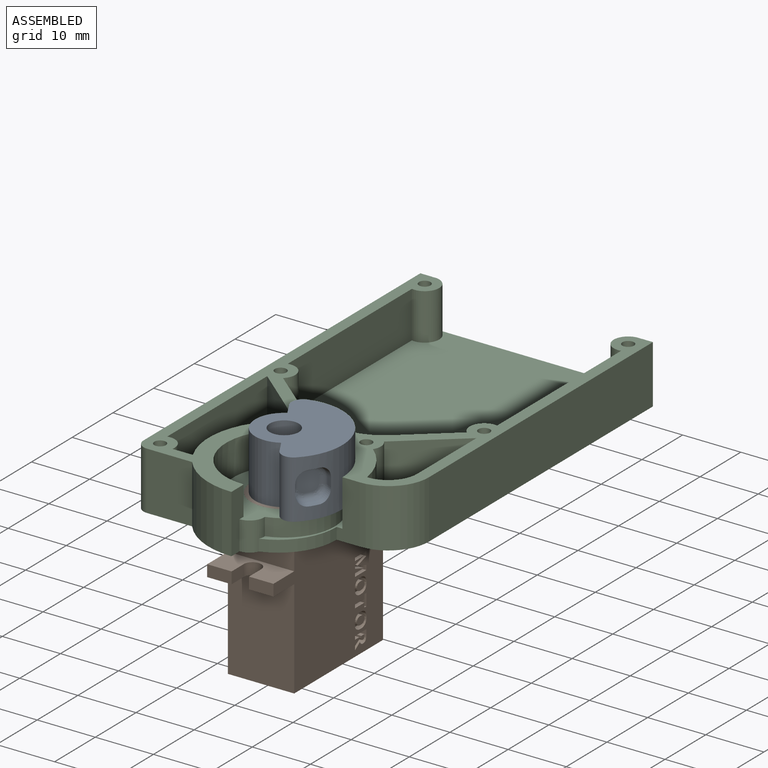
[diagram: assembled view]
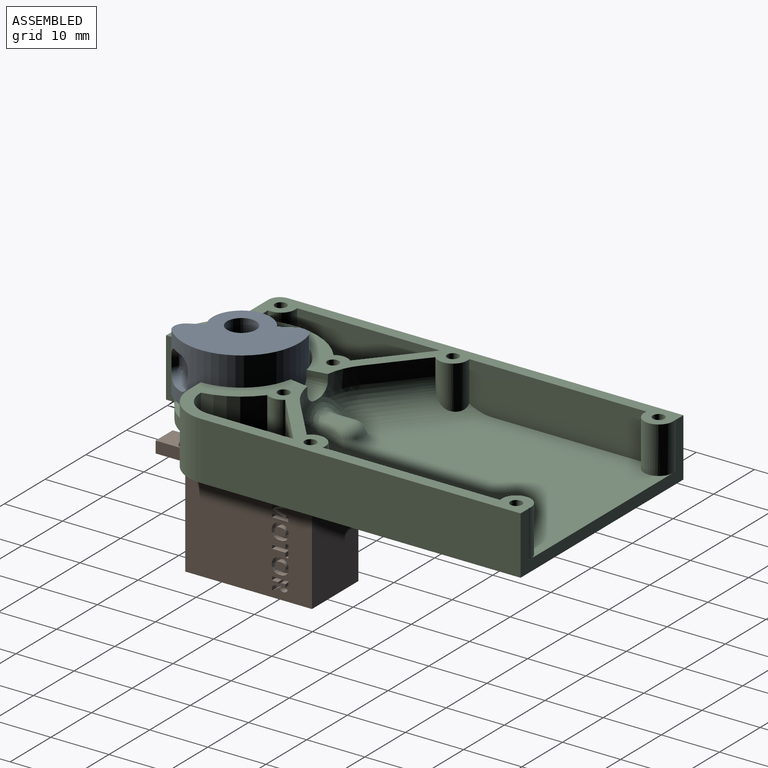
[diagram: assembled view, second angle]
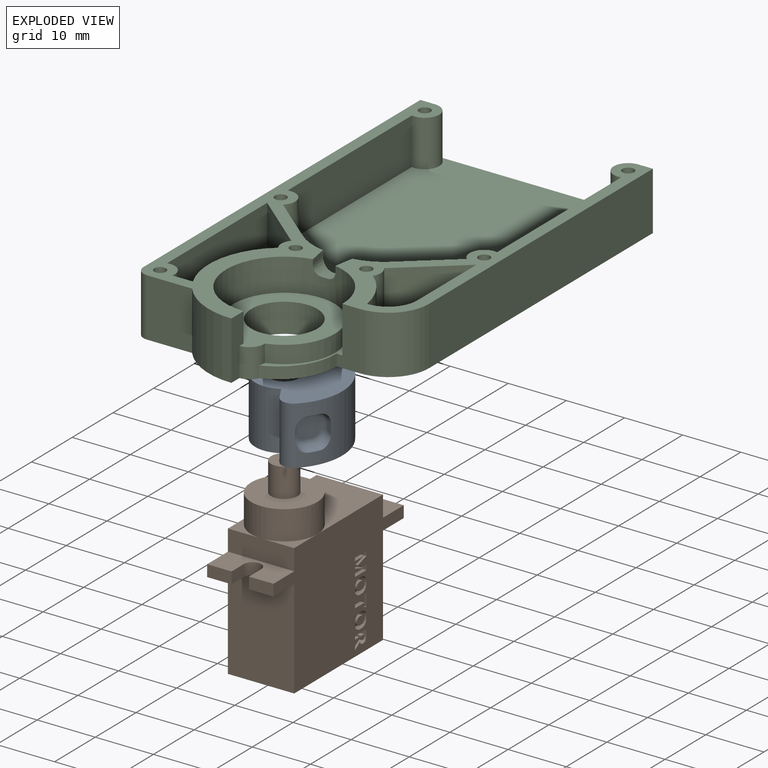
[diagram: exploded view]
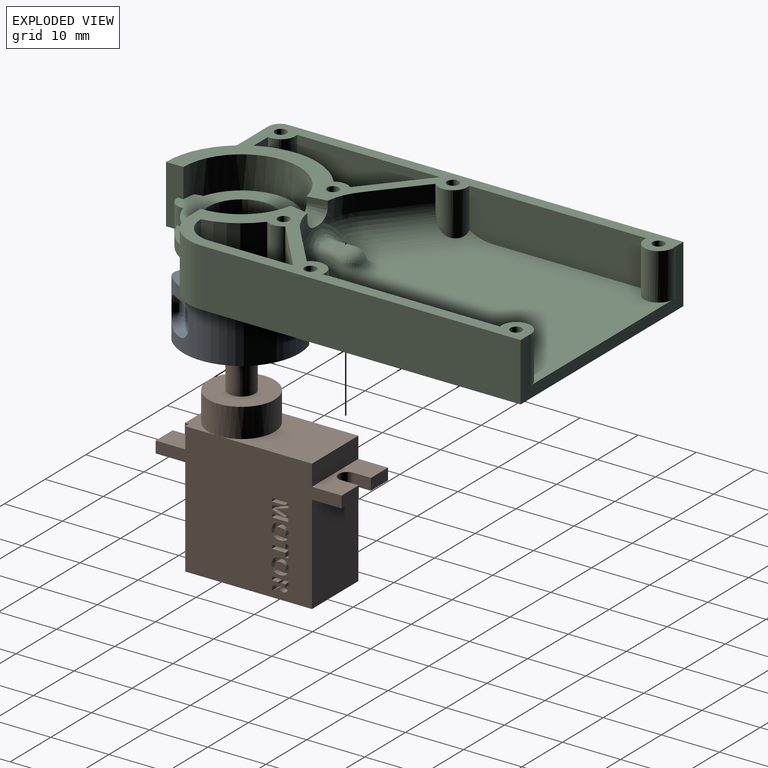
[diagram: exploded view, second angle]
ASSEMBLY  parts=3 mates=3
PART A: 30 faces, bbox 15x10x17.7 mm
  f0: cylinder r=1mm len=2mm, axis (0,-1,0), area 12.6mm2, adj f25,f29
  f1: plane 10x2.38mm, normal (0.87,0,-0.5), area 27.5mm2, adj f3,f4,f23,f27
  f2: cylinder r=10mm len=17.14mm, axis (0,1,0), area 235.3mm2, adj f3,f4,f5,f6,f7,f10,f11,f12
  f3: plane 17.71x15mm, normal (0,1,0), area 174.2mm2, adj f1,f2,f22,f23,f26,f27,f28
  f4: plane 17.71x15mm, normal (0,-1,0), area 174.2mm2, adj f1,f2,f22,f23,f24,f26,f27
  f5: plane 1.77x1.19mm, normal (0,-0.98,0.17), area 1.8mm2, adj f2,f10,f13,f17
  f6: plane 1.77x1.19mm, normal (0,0.98,0.17), area 1.8mm2, adj f2,f11,f12,f18
  f7: plane 1.63x0.78mm, normal (0.98,0,0.17), area 1.2mm2, adj f2,f10,f11,f14
  f8: plane 1.63x0.78mm, normal (-0.98,0,0.17), area 1.2mm2, adj f12,f13,f21,f27
  f9: plane 3.32x3.32mm, normal (0,0,1), area 10.2mm2, adj f14,f15,f16,f17,f18,f19,f20,f21
  f10: cylinder r=2mm len=2.17mm, axis (-0.17,0.17,0.97), area 3.1mm2, adj f2,f5,f7,f15
  f11: cylinder r=2mm len=2.17mm, axis (-0.17,-0.17,0.97), area 3.1mm2, adj f2,f6,f7,f16
  f12: cylinder r=2mm len=2.17mm, axis (0.17,-0.17,0.97), area 3.1mm2, adj f2,f6,f8,f20,f27
  f13: cylinder r=2mm len=2.17mm, axis (0.17,0.17,0.97), area 3.1mm2, adj f2,f5,f8,f19,f27
  f14: cylinder r=1mm len=1.35mm, axis (0,1,0), area 1.9mm2, adj f7,f9,f15,f16
  f15: bspline ~1.97x1.97mm, area 3.3mm2, adj f9,f10,f14,f17
  f16: bspline ~1.97x1.97mm, area 3.3mm2, adj f9,f11,f14,f18
  f17: cylinder r=1mm len=1.35mm, axis (-1,0,0), area 1.9mm2, adj f5,f9,f15,f19
  f18: cylinder r=1mm len=1.35mm, axis (-1,0,0), area 1.9mm2, adj f6,f9,f16,f20
  f19: bspline ~1.97x1.97mm, area 3.3mm2, adj f9,f13,f17,f21
  f20: bspline ~1.97x1.97mm, area 3.3mm2, adj f9,f12,f18,f21
  f21: cylinder r=1mm len=1.35mm, axis (0,1,0), area 1.9mm2, adj f8,f9,f19,f20
  f22: plane 10x2.38mm, normal (0.87,0,-0.5), area 27.5mm2, adj f3,f4,f23,f26
  f23: cylinder r=5mm len=10mm, axis (0,1,0), area 157.1mm2, adj f1,f3,f4,f22
  f24: cylinder r=2.5mm len=5mm, axis (0,-1,0), area 47.1mm2, adj f4,f25
  f25: plane 5x5mm, normal (0,-1,0), area 16.5mm2, adj f0,f24
  f26: cylinder r=2mm len=10mm, axis (0,1,0), area 36.5mm2, adj f2,f3,f4,f22
  f27: cylinder r=2mm len=10mm, axis (0,1,0), area 36.2mm2, adj f1,f2,f3,f4,f8,f12,f13
  f28: cylinder r=2.5mm len=5mm, axis (0,1,0), area 78.5mm2, adj f3,f29
  f29: plane 5x5mm, normal (0,1,0), area 16.5mm2, adj f0,f28
PART B: 112 faces, bbox 32x11.4x32.6 mm
  f0: plane 32x22.6mm, normal (0,1,0), area 488.4mm2, adj f3,f4,f5,f6,f7,f8,f9,f11
  f1: plane 4.2x2mm, normal (1,0,0), area 8.4mm2, adj f10,f15,f16,f29
  f2: plane 4.2x2mm, normal (-1,0,0), area 8.4mm2, adj f3,f4,f10,f25
  f3: plane 11.4x5.1mm, normal (0,0,1), area 45.6mm2, adj f0,f2,f7,f10,f17,f24,f25,f26
  f4: plane 11.4x5.1mm, normal (0,0,-1), area 45.6mm2, adj f0,f2,f9,f10,f17,f24,f25,f26
  f5: plane 5.7x5.7mm, normal (0,0,1), area 7mm2, adj f0,f8,f18
  f6: plane 16.1x11.4mm, normal (0,0,1), area 132.5mm2, adj f0,f7,f10,f18
  f7: plane 11.4x3.6mm, normal (-1,0,0), area 41mm2, adj f0,f3,f6,f10
  f8: plane 11.4x3.6mm, normal (1,0,0), area 41mm2, adj f0,f5,f10,f12,f16
  f9: plane 17x11.4mm, normal (-1,0,0), area 193.8mm2, adj f0,f4,f10,f13
  f10: plane 32x22.6mm, normal (0,-1,0), area 513.1mm2, adj f1,f2,f3,f4,f6,f7,f8,f9
  f11: plane 17x11.4mm, normal (1,0,0), area 193.8mm2, adj f0,f10,f13,f15
  f12: plane 5.7x5.7mm, normal (0,0,1), area 7mm2, adj f8,f10,f18
  f13: plane 21.8x11.4mm, normal (0,0,-1), area 248.5mm2, adj f0,f9,f10,f11
  f14: plane 4.2x2mm, normal (1,0,0), area 8.4mm2, adj f0,f15,f16,f28
  f15: plane 11.4x5.1mm, normal (0,0,-1), area 45.6mm2, adj f0,f1,f10,f11,f14,f27,f28,f29
  f16: plane 11.4x5.1mm, normal (0,0,1), area 45.6mm2, adj f0,f1,f8,f10,f14,f27,f28,f29
  f17: plane 4.2x2mm, normal (-1,0,0), area 8.4mm2, adj f0,f3,f4,f26
  f18: cylinder r=5.7mm len=11.4mm, axis (0,0,-1), area 179.1mm2, adj f5,f6,f12,f19
  f19: plane 11.4x11.4mm, normal (0,0,1), area 85.8mm2, adj f18,f20
  f20: cylinder r=2.27mm len=5mm, axis (0,0,-1), area 71.5mm2, adj f19,f21
  f21: plane 4.55x4.55mm, normal (0,0,1), area 14.6mm2, adj f20,f22
  f22: cylinder r=0.74mm len=5mm, axis (0,0,1), area 23.2mm2, adj f21,f23
  f23: plane 1.48x1.48mm, normal (0,0,1), area 1.7mm2, adj f22
  f24: cylinder r=1.5mm len=3mm, axis (0,0,1), area 9.4mm2, adj f3,f4,f25,f26
  f25: plane 3x2mm, normal (0,1,0), area 6mm2, adj f2,f3,f4,f24
  f26: plane 3x2mm, normal (0,-1,0), area 6mm2, adj f3,f4,f17,f24
  f27: cylinder r=1.5mm len=3mm, axis (0,0,1), area 9.4mm2, adj f15,f16,f28,f29
  f28: plane 3x2mm, normal (0,-1,0), area 6mm2, adj f14,f15,f16,f27
  f29: plane 3x2mm, normal (0,1,0), area 6mm2, adj f1,f15,f16,f27
  f30: plane 1.07x1mm, normal (0,0,1), area 1.1mm2, adj f0,f31,f48,f49
  f31: plane 1x0.31mm, normal (-1,0,0), area 0.3mm2, adj f0,f30,f32,f49
  f32: plane 1.07x1mm, normal (-0.53,0,-0.85), area 1.3mm2, adj f0,f31,f33,f49
  f33: plane 1x0.66mm, normal (-1,0,0), area 0.7mm2, adj f0,f32,f34,f49
  f34: extruded ~1.22x1mm, area 1.5mm2, adj f0,f33,f35,f49
  f35: extruded ~1x0.38mm, area 0.5mm2, adj f0,f34,f36,f49
  f36: extruded ~1x0.44mm, area 0.5mm2, adj f0,f35,f37,f49
  f37: extruded ~1x0.63mm, area 0.7mm2, adj f0,f36,f38,f49
  f38: extruded ~1x0.84mm, area 0.9mm2, adj f0,f37,f39,f49
  f39: plane 1x0.81mm, normal (1,0,0), area 0.8mm2, adj f0,f38,f40,f49
  f40: plane 2.79x1mm, normal (0,0,-1), area 2.8mm2, adj f0,f39,f48,f49
  f41: plane 1x0.19mm, normal (1,0,0), area 0.2mm2, adj f42,f47,f49,f50
  f42: plane 1x0.75mm, normal (0,0,1), area 0.8mm2, adj f41,f43,f49,f50
  f43: plane 1x0.18mm, normal (-1,0,0), area 0.2mm2, adj f42,f44,f49,f50
  f44: extruded ~1x0.42mm, area 0.4mm2, adj f43,f45,f49,f50
  f45: extruded ~1x0.28mm, area 0.3mm2, adj f44,f46,f49,f50
  f46: extruded ~1x0.29mm, area 0.3mm2, adj f45,f47,f49,f50
  f47: extruded ~1x0.41mm, area 0.4mm2, adj f41,f46,f49,f50
  f48: plane 1x0.59mm, normal (-1,0,0), area 0.6mm2, adj f0,f30,f40,f49
  f49: plane 2.79x2.23mm, normal (0,1,0), area 3.8mm2, adj f30,f31,f32,f33,f34,f35,f36,f37
  f50: plane 0.75x0.74mm, normal (0,1,0), area 0.5mm2, adj f41,f42,f43,f44,f45,f46,f47
  f51: extruded ~1x0.7mm, area 0.7mm2, adj f52,f64,f65,f110
  f52: extruded ~1x0.7mm, area 0.7mm2, adj f51,f53,f65,f110
  f53: extruded ~1x0.53mm, area 0.6mm2, adj f52,f54,f65,f110
  f54: extruded ~1x0.94mm, area 1.3mm2, adj f53,f55,f65,f110
  f55: extruded ~1x0.94mm, area 1.3mm2, adj f54,f64,f65,f110
  f56: extruded ~1.07x1mm, area 1.1mm2, adj f0,f57,f63,f65
  f57: extruded ~1.06x1mm, area 1.1mm2, adj f0,f56,f58,f65
  f58: extruded ~1x0.98mm, area 1.1mm2, adj f0,f57,f59,f65
  f59: extruded ~1x0.99mm, area 1.1mm2, adj f0,f58,f60,f65
  f60: extruded ~1.06x1mm, area 1.1mm2, adj f0,f59,f61,f65
  f61: extruded ~1.07x1mm, area 1.1mm2, adj f0,f60,f62,f65
  f62: extruded ~1x0.98mm, area 1.1mm2, adj f0,f61,f63,f65
  f63: extruded ~1x0.98mm, area 1.1mm2, adj f0,f56,f62,f65
  f64: extruded ~1x0.53mm, area 0.6mm2, adj f51,f55,f65,f110
  f65: plane 2.87x2.66mm, normal (0,1,0), area 4.1mm2, adj f51,f52,f53,f54,f55,f56,f57,f58
  f66: extruded ~1x0.7mm, area 0.7mm2, adj f67,f79,f80,f111
  f67: extruded ~1x0.7mm, area 0.7mm2, adj f66,f68,f80,f111
  f68: extruded ~1x0.53mm, area 0.6mm2, adj f67,f69,f80,f111
  f69: extruded ~1x0.94mm, area 1.3mm2, adj f68,f70,f80,f111
  f70: extruded ~1x0.94mm, area 1.3mm2, adj f69,f79,f80,f111
  f71: extruded ~1.07x1mm, area 1.1mm2, adj f0,f72,f78,f80
  f72: extruded ~1.06x1mm, area 1.1mm2, adj f0,f71,f73,f80
  f73: extruded ~1x0.98mm, area 1.1mm2, adj f0,f72,f74,f80
  f74: extruded ~1x0.99mm, area 1.1mm2, adj f0,f73,f75,f80
  f75: extruded ~1.06x1mm, area 1.1mm2, adj f0,f74,f76,f80
  f76: extruded ~1.07x1mm, area 1.1mm2, adj f0,f75,f77,f80
  f77: extruded ~1x0.98mm, area 1.1mm2, adj f0,f76,f78,f80
  f78: extruded ~1x0.98mm, area 1.1mm2, adj f0,f71,f77,f80
  f79: extruded ~1x0.53mm, area 0.6mm2, adj f66,f70,f80,f111
  f80: plane 2.87x2.66mm, normal (0,1,0), area 4.1mm2, adj f66,f67,f68,f69,f70,f71,f72,f73
  f81: plane 1x0.59mm, normal (-1,0,0), area 0.6mm2, adj f0,f82,f88,f89
  f82: plane 2.3x1mm, normal (0,0,1), area 2.3mm2, adj f0,f81,f83,f89
  f83: plane 1x0.76mm, normal (-1,0,0), area 0.8mm2, adj f0,f82,f84,f89
  f84: plane 1x0.49mm, normal (0,0,1), area 0.5mm2, adj f0,f83,f85,f89
  f85: plane 2.11x1mm, normal (1,0,0), area 2.1mm2, adj f0,f84,f86,f89
  f86: plane 1x0.49mm, normal (0,0,-1), area 0.5mm2, adj f0,f85,f87,f89
  f87: plane 1x0.76mm, normal (-1,0,0), area 0.8mm2, adj f0,f86,f88,f89
  f88: plane 2.3x1mm, normal (0,0,-1), area 2.3mm2, adj f0,f81,f87,f89
  f89: plane 2.79x2.11mm, normal (0,1,0), area 2.4mm2, adj f81,f82,f83,f84,f85,f86,f87,f88
  f90: plane 2.19x1mm, normal (-0.29,0,-0.96), area 2.3mm2, adj f0,f91,f108,f109
  f91: plane 1x0.54mm, normal (-1,0,0), area 0.5mm2, adj f0,f90,f92,f109
  f92: plane 2.18x1mm, normal (-0.31,0,0.95), area 2.3mm2, adj f0,f91,f93,f109
  f93: plane 1x0.02mm, normal (-1,0,0), area 0mm2, adj f0,f92,f94,f109
  f94: extruded ~1x0.65mm, area 0.6mm2, adj f0,f93,f95,f109
  f95: extruded ~1x0.22mm, area 0.2mm2, adj f0,f94,f96,f109
  f96: plane 1.32x1mm, normal (0,0,-1), area 1.3mm2, adj f0,f95,f97,f109
  f97: plane 1x0.55mm, normal (-1,0,0), area 0.6mm2, adj f0,f96,f98,f109
  f98: plane 2.79x1mm, normal (0,0,1), area 2.8mm2, adj f0,f97,f99,f109
  f99: plane 1x0.8mm, normal (1,0,0), area 0.8mm2, adj f0,f98,f100,f109
  f100: plane 2.13x1mm, normal (0.31,0,-0.95), area 2.2mm2, adj f0,f99,f101,f109
  f101: plane 1x0.01mm, normal (1,0,0), area 0mm2, adj f0,f100,f102,f109
  f102: plane 2.13x1mm, normal (0.3,0,0.96), area 2.2mm2, adj f0,f101,f103,f109
  f103: plane 1x0.81mm, normal (1,0,0), area 0.8mm2, adj f0,f102,f104,f109
  f104: plane 2.79x1mm, normal (0,0,-1), area 2.8mm2, adj f0,f103,f105,f109
  f105: plane 1x0.53mm, normal (-1,0,0), area 0.5mm2, adj f0,f104,f106,f109
  f106: plane 1.3x1mm, normal (0,0,1), area 1.3mm2, adj f0,f105,f107,f109
  f107: extruded ~1x0.89mm, area 0.9mm2, adj f0,f106,f108,f109
  f108: plane 1x0.02mm, normal (-1,0,0), area 0mm2, adj f0,f90,f107,f109
  f109: plane 2.98x2.79mm, normal (0,1,0), area 5.4mm2, adj f90,f91,f92,f93,f94,f95,f96,f97
  f110: plane 1.88x1.42mm, normal (0,1,0), area 2.2mm2, adj f51,f52,f53,f54,f55,f64
  f111: plane 1.88x1.42mm, normal (0,1,0), area 2.2mm2, adj f66,f67,f68,f69,f70,f79
PART C: 103 faces, bbox 42.4x75x10.6 mm
  f0: plane 42.83x36mm, normal (0,0,1), area 1336.2mm2, adj f2,f4,f28,f48,f49,f64,f86,f87
  f1: plane 0.5x0.05mm, normal (0,0,1), area 0mm2, adj f28,f31,f87
  f2: plane 30.48x8mm, normal (-1,0,0), area 242.5mm2, adj f0,f27,f48,f84,f87
  f3: plane 0.5x0.05mm, normal (0,0,1), area 0mm2, adj f28,f30,f86
  f4: plane 30.48x8mm, normal (1,0,0), area 242.5mm2, adj f0,f18,f49,f85,f86
  f5: plane 27.51x10.01mm, normal (0,0,1), area 161.4mm2, adj f24,f25,f32,f36,f81,f83
  f6: plane 19.51x10.01mm, normal (0,0,1), area 120.7mm2, adj f26,f35,f37,f78,f79,f82
  f7: bspline ~0.04x0mm, area 0mm2, adj f13,f43,f74
  f8: cylinder r=1mm len=4mm, axis (0,0,-1), area 18.8mm2, adj f9,f19,f59,f60
  f9: plane 2x1mm, normal (0,0,-1), area 1.6mm2, adj f8,f59
  f10: torus R=5mm, axis (0,0,1), area 20.3mm2, adj f11,f39,f48,f67,f69
  f11: torus R=18mm, axis (0,0,1), area 0mm2, adj f10,f12,f20,f71
  f12: bspline ~0.04x0mm, area 0mm2, adj f11,f43,f73
  f13: torus R=18mm, axis (0,0,1), area 0mm2, adj f7,f14,f21,f72
  f14: torus R=5mm, axis (0,0,1), area 20.3mm2, adj f13,f22,f49,f68,f70
  f15: plane 55x10mm, normal (1,0,0), area 550mm2, adj f19,f27,f28,f80
  f16: cylinder r=10mm len=20mm, axis (0,0,-1), area 361.8mm2, adj f17,f18,f27,f41,f42,f43,f45,f46
  f17: plane 20x19.76mm, normal (0,0,1), area 60.8mm2, adj f16,f44,f50,f51,f53,f54,f55
  f18: plane 75x20mm, normal (0,0,1), area 311.5mm2, adj f4,f16,f22,f23,f24,f25,f28,f29
  f19: plane 75x40mm, normal (0,0,-1), area 2626.8mm2, adj f8,f15,f23,f28,f29,f38,f40,f50
  f20: cylinder r=13mm len=0.11mm, axis (0,0,-1), area 0mm2, adj f11,f39,f46
  f21: cylinder r=13mm len=0.11mm, axis (0,0,-1), area 0mm2, adj f13,f22,f47
  f22: cylinder r=10mm len=6.9mm, axis (0,0,-1), area 17.5mm2, adj f14,f18,f21,f33,f41,f47
  f23: plane 10x7.75mm, normal (0,-1,0), area 77.5mm2, adj f18,f19,f38,f102
  f24: plane 24.56x8mm, normal (1,0,0), area 196.5mm2, adj f5,f18,f32,f83
  f25: plane 8x3.52mm, normal (0,1,0), area 28.1mm2, adj f5,f18,f36,f83
  f26: plane 14.51x8mm, normal (-1,0,0), area 116mm2, adj f6,f27,f35,f79
  f27: plane 62x18.06mm, normal (0,0,1), area 228.5mm2, adj f2,f15,f16,f26,f28,f31,f34,f35
  f28: plane 40x10mm, normal (0,1,0), area 112mm2, adj f0,f1,f3,f15,f18,f19,f27,f29
  f29: plane 68x10mm, normal (-1,0,0), area 680mm2, adj f18,f19,f28,f102
  f30: plane 8x0.05mm, normal (1,0,0), area 0.4mm2, adj f3,f18,f28,f86
  f31: plane 8x0.05mm, normal (-1,0,0), area 0.4mm2, adj f1,f27,f28,f87
  f32: plane 10.01x8.4mm, normal (-0.64,-0.77,0), area 104.6mm2, adj f5,f18,f24,f81
  f33: plane 8.3x6.96mm, normal (0.64,0.77,0), area 32.5mm2, adj f18,f22,f49,f85
  f34: plane 8.3x6.96mm, normal (-0.64,0.77,0), area 32.5mm2, adj f27,f39,f48,f84
  f35: plane 10.01x8.4mm, normal (0.64,-0.77,0), area 104.6mm2, adj f6,f26,f27,f82
  f36: cylinder r=13mm len=16.12mm, axis (0,0,-1), area 142.7mm2, adj f5,f18,f25,f81
  f37: cylinder r=13mm len=8.12mm, axis (0,0,-1), area 76.7mm2, adj f6,f27,f78,f82
  f38: cylinder r=13mm len=10.25mm, axis (0,0,-1), area 118mm2, adj f18,f19,f23,f52
  f39: cylinder r=10mm len=6.9mm, axis (0,0,-1), area 17.5mm2, adj f10,f20,f27,f34,f42,f46
  f40: cylinder r=5.7mm len=11.4mm, axis (0,0,1), area 179.1mm2, adj f19,f45
  f41: plane 3.27x1mm, normal (0.98,0.17,0), area 3.3mm2, adj f16,f18,f22,f47
  f42: plane 3.27x1mm, normal (-0.98,0.17,0), area 3.3mm2, adj f16,f27,f39,f46
  f43: plane 3.02x1mm, normal (0,0.17,0.98), area 3mm2, adj f7,f12,f16,f46,f47,f75,f76,f77
  f44: cylinder r=8.7mm len=17.4mm, axis (0,0,-1), area 148.8mm2, adj f17,f45,f54,f55
  f45: plane 19.7x17.4mm, normal (0,0,1), area 143.6mm2, adj f16,f40,f44,f52,f54,f55
  f46: cone r=2mm half-angle=10deg, axis (0,1,0), area 8.6mm2, adj f16,f20,f39,f42,f43
  f47: cone r=2mm half-angle=10deg, axis (0,1,0), area 8.6mm2, adj f16,f21,f22,f41,f43
  f48: cylinder r=5mm len=16.92mm, axis (-0.77,-0.64,0), area 101.5mm2, adj f0,f2,f10,f34,f65,f84
  f49: cylinder r=5mm len=16.92mm, axis (-0.77,0.64,0), area 101.5mm2, adj f0,f4,f14,f33,f66,f85
  f50: plane 2x0.05mm, normal (1,0,0), area 0.1mm2, adj f17,f19,f51,f53
  f51: plane 10x4mm, normal (0,-1,0), area 32mm2, adj f16,f17,f19,f27,f50,f80
  f52: plane 10x3mm, normal (1,0,0), area 25mm2, adj f16,f18,f19,f38,f45,f54
  f53: cylinder r=10mm len=9.44mm, axis (0,0,1), area 24.7mm2, adj f17,f19,f50,f54
  f54: cylinder r=2.5mm len=5mm, axis (0,0,-1), area 18.1mm2, adj f17,f19,f44,f45,f52,f53
  f55: cylinder r=2.5mm len=3mm, axis (0,0,-1), area 4.5mm2, adj f16,f17,f44,f45
  f56: plane 4.01x1mm, normal (0,0,1), area 3.9mm2, adj f61,f62,f63,f77
  f57: cylinder r=1mm len=4mm, axis (0,0,-1), area 25.1mm2, adj f19,f58
  f58: plane 2x2mm, normal (0,0,-1), area 3.1mm2, adj f57
  f59: plane 2x2mm, normal (0,1,0), area 4mm2, adj f8,f9,f60
  f60: plane 2x1mm, normal (0,0,-1), area 1.6mm2, adj f8,f59
  f61: cylinder r=2mm len=3.53mm, axis (0,-1,0), area 7.4mm2, adj f56,f62,f70,f72,f74,f76
  f62: torus R=0.5mm, axis (0,0,-1), area 13.6mm2, adj f56,f61,f63,f64,f65,f66,f67,f68
  f63: cylinder r=2mm len=3.53mm, axis (0,-1,0), area 7.4mm2, adj f56,f62,f69,f71,f73,f75
  f64: torus R=4.37mm, axis (0,0,1), area 24.2mm2, adj f0,f62,f65,f66
  f65: bspline ~2.02x1.54mm, area 0.2mm2, adj f48,f62,f64,f67
  f66: bspline ~2.02x1.54mm, area 0.2mm2, adj f49,f62,f64,f68
  f67: bspline ~2.34x2.27mm, area 1.7mm2, adj f10,f62,f65,f69
  f68: bspline ~2.34x2.27mm, area 1.7mm2, adj f14,f62,f66,f70
  f69: bspline ~6.84x5.14mm, area 21.6mm2, adj f10,f63,f67,f71
  f70: bspline ~6.84x5.14mm, area 21.6mm2, adj f14,f61,f68,f72
  f71: bspline ~2.01x2.01mm, area 0.2mm2, adj f11,f63,f69,f73
  f72: bspline ~2.01x2.01mm, area 0.2mm2, adj f13,f61,f70,f74
  f73: bspline ~2.01x2mm, area 0.1mm2, adj f12,f63,f71,f75
  f74: bspline ~2.01x2mm, area 0.1mm2, adj f7,f61,f72,f76
  f75: bspline ~2x2mm, area 0.1mm2, adj f43,f63,f73,f77
  f76: bspline ~2x2mm, area 0.1mm2, adj f43,f61,f74,f77
  f77: bspline ~2.01x2mm, area 2.9mm2, adj f43,f56,f75,f76
  f78: plane 8x0.15mm, normal (0,1,0), area 1.2mm2, adj f6,f27,f37,f79
  f79: cylinder r=5mm len=8mm, axis (0,0,1), area 62.8mm2, adj f6,f26,f27,f78
  f80: cylinder r=7mm len=10mm, axis (0,0,1), area 110mm2, adj f15,f19,f27,f51
  f81: cylinder r=2.5mm len=8mm, axis (0,0,1), area 25.6mm2, adj f5,f18,f32,f36
  f82: cylinder r=2.5mm len=8mm, axis (0,0,1), area 25.6mm2, adj f6,f27,f35,f37
  f83: cylinder r=2.5mm len=8mm, axis (0,0,1), area 39.5mm2, adj f5,f18,f24,f25
  f84: cylinder r=2.5mm len=7.5mm, axis (0,0,1), area 44.4mm2, adj f2,f27,f34,f48
  f85: cylinder r=2.5mm len=7.5mm, axis (0,0,1), area 44.4mm2, adj f4,f18,f33,f49
  f86: cylinder r=2.5mm len=8mm, axis (0,0,1), area 70.9mm2, adj f0,f3,f4,f18,f30
  f87: cylinder r=2.5mm len=8mm, axis (0,0,1), area 70.9mm2, adj f0,f1,f2,f27,f31
  f88: cylinder r=1mm len=5mm, axis (0,0,1), area 31.4mm2, adj f27,f89
  f89: plane 2x2mm, normal (0,0,1), area 3.1mm2, adj f88
  f90: cylinder r=1mm len=5mm, axis (0,0,1), area 31.4mm2, adj f27,f91
  f91: plane 2x2mm, normal (0,0,1), area 3.1mm2, adj f90
  f92: cylinder r=1mm len=5mm, axis (0,0,1), area 31.4mm2, adj f27,f93
  f93: plane 2x2mm, normal (0,0,1), area 3.1mm2, adj f92
  f94: cylinder r=1mm len=5mm, axis (0,0,1), area 31.4mm2, adj f18,f95
  f95: plane 2x2mm, normal (0,0,1), area 3.1mm2, adj f94
  f96: cylinder r=1mm len=5mm, axis (0,0,1), area 31.4mm2, adj f18,f97
  f97: plane 2x2mm, normal (0,0,1), area 3.1mm2, adj f96
  f98: cylinder r=1mm len=5mm, axis (0,0,1), area 31.4mm2, adj f18,f99
  f99: plane 2x2mm, normal (0,0,1), area 3.1mm2, adj f98
  f100: cylinder r=1mm len=5mm, axis (0,0,1), area 31.4mm2, adj f18,f101
  f101: plane 2x2mm, normal (0,0,1), area 3.1mm2, adj f100
  f102: cylinder r=2mm len=10mm, axis (0,0,1), area 31.4mm2, adj f18,f19,f23,f29
PLACE A rot(axis=(-0.38,0.65,-0.65),138.6deg) t=(0.63,-28.76,10)mm
PLACE B rot(axis=(0,0,-1),90deg) t=(0.63,-23.56,-22.6)mm
PLACE C t=(0.63,-1.76,0)mm
MATE planar C.f19 <-> B.f6  axis (0,0,-1) through (0,0,0)mm
MATE slider B.f18 <-> C.f16  axis (0,0,-1) through (0.63,-28.76,0)mm
MATE revolute A.f28 <-> B.f20  axis (0,0,-1) through (0.63,-28.76,5)mm
